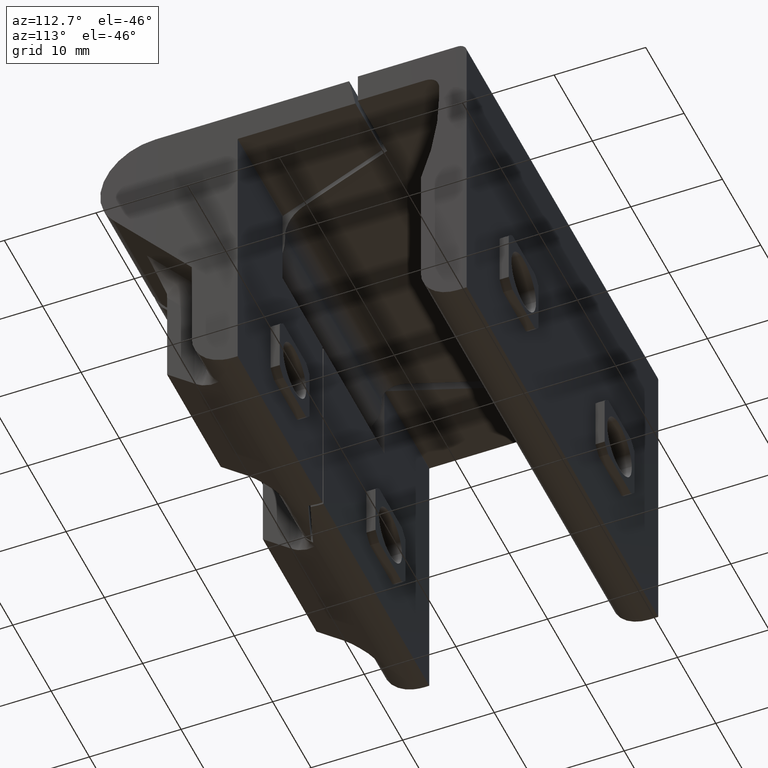
[diagram: clean part render]
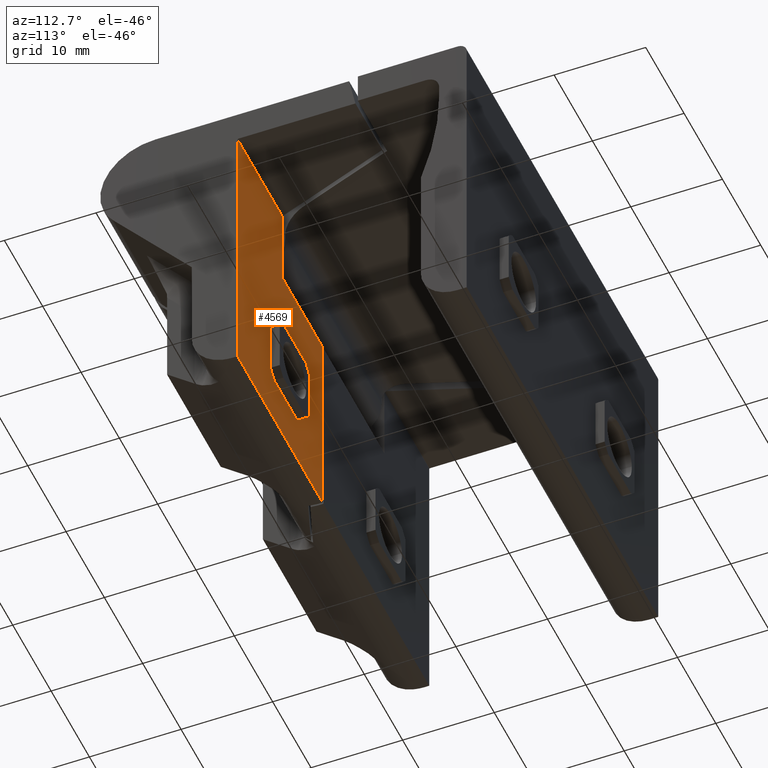
[diagram: same view with one face highlighted and labeled with its STEP entity id]
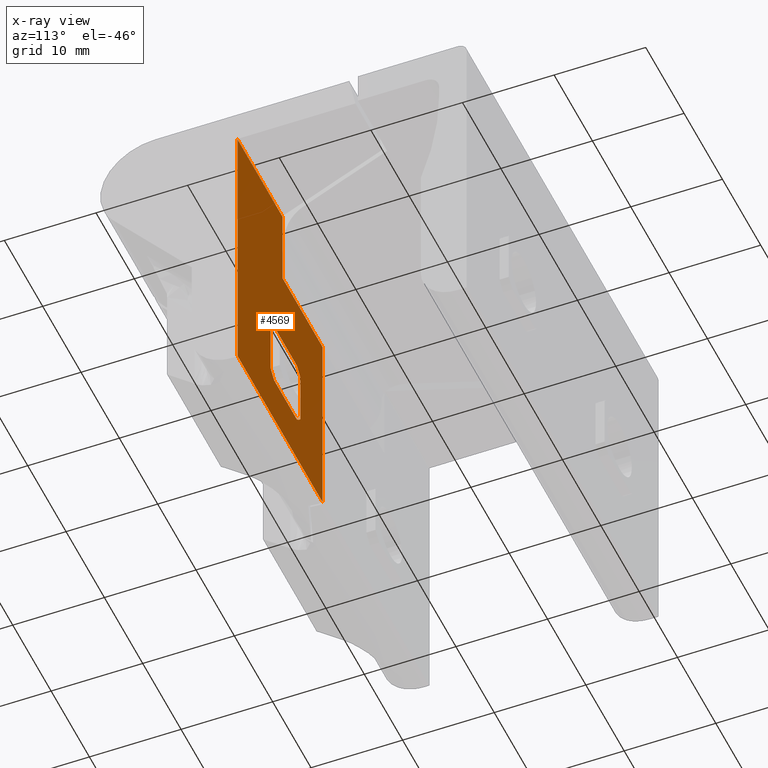
[diagram: x-ray of the same camera — body ghosted, the highlighted face saturated]
A machine part, auxiliary view. The second image highlights one B-rep face of the part: STEP entity #4569.
The next image is the same camera in x-ray: the body ghosted, the highlighted face saturated — about 0% of this face is hidden behind the body in this view.
In plain terms, the highlighted face is a freeform B-spline surface patch.
Its self-contained STEP definition (entity closure, byte-faithful):
#3837=CARTESIAN_POINT('',(2.806379506659595,-25.0,22.499999999963102));
#3838=VERTEX_POINT('',#3837);
#3844=CARTESIAN_POINT('',(2.806379506659595,-25.0,-3.685940E-011));
#3845=VERTEX_POINT('',#3844);
#3846=CARTESIAN_POINT('',(2.806379506659595,-25.0,22.499999999963102));
#3847=CARTESIAN_POINT('',(2.806379506659595,-25.0,-3.685940E-011));
#3848=QUASI_UNIFORM_CURVE('',1,(#3846,#3847),.UNSPECIFIED.,.F.,.U.);
#3849=EDGE_CURVE('',#3838,#3845,#3848,.T.);
#3866=CARTESIAN_POINT('',(13.291910702825540,-25.0,31.400000000037149));
#3867=VERTEX_POINT('',#3866);
#3881=CARTESIAN_POINT('',(13.291910702825620,-25.0,22.499999999963151));
#3882=VERTEX_POINT('',#3881);
#3883=CARTESIAN_POINT('',(13.291910702825620,-25.0,22.499999999963151));
#3884=CARTESIAN_POINT('',(13.291910702825540,-25.0,31.400000000037149));
#3885=QUASI_UNIFORM_CURVE('',1,(#3883,#3884),.UNSPECIFIED.,.F.,.U.);
#3886=EDGE_CURVE('',#3882,#3867,#3885,.T.);
#4375=CARTESIAN_POINT('',(13.291910702825620,-25.0,22.499999999963151));
#4376=CARTESIAN_POINT('',(2.806379506659595,-25.0,22.499999999963102));
#4377=QUASI_UNIFORM_CURVE('',1,(#4375,#4376),.UNSPECIFIED.,.F.,.U.);
#4378=EDGE_CURVE('',#3882,#3838,#4377,.T.);
#4395=CARTESIAN_POINT('',(25.0,-25.0,3.703196E-011));
#4396=VERTEX_POINT('',#4395);
#4402=CARTESIAN_POINT('',(25.0,-25.0,31.400000000037149));
#4403=VERTEX_POINT('',#4402);
#4404=CARTESIAN_POINT('',(25.0,-25.0,3.703196E-011));
#4405=CARTESIAN_POINT('',(25.0,-25.0,31.400000000037149));
#4406=QUASI_UNIFORM_CURVE('',1,(#4404,#4405),.UNSPECIFIED.,.F.,.U.);
#4407=EDGE_CURVE('',#4396,#4403,#4406,.T.);
#4442=CARTESIAN_POINT('',(25.0,-25.0,31.400000000037149));
#4443=CARTESIAN_POINT('',(13.291910702825540,-25.0,31.400000000037149));
#4444=QUASI_UNIFORM_CURVE('',1,(#4442,#4443),.UNSPECIFIED.,.F.,.U.);
#4445=EDGE_CURVE('',#4403,#3867,#4444,.T.);
#4457=CARTESIAN_POINT('',(25.0,-25.0,3.703196E-011));
#4458=CARTESIAN_POINT('',(2.806379506659595,-25.0,-3.685940E-011));
#4459=QUASI_UNIFORM_CURVE('',1,(#4457,#4458),.UNSPECIFIED.,.F.,.U.);
#4460=EDGE_CURVE('',#4396,#3845,#4459,.T.);
#4466=CARTESIAN_POINT('',(1.697808206032786,-25.0,32.968429939181561));
#4467=CARTESIAN_POINT('',(1.697808206032786,-25.0,-1.568430781394893));
#4468=CARTESIAN_POINT('',(26.108571895906099,-25.0,32.968429939181561));
#4469=CARTESIAN_POINT('',(26.108571895906099,-25.0,-1.568430781394893));
#4470=B_SPLINE_SURFACE_WITH_KNOTS('',1,1,((#4466,#4468),(#4467,#4469)),.UNSPECIFIED.,.F.,.F.,.U.,(2,2),(2,2),(0.0,34.536860720576463),(0.0,24.410763689873310),.UNSPECIFIED.);
#4471=ORIENTED_EDGE('',*,*,#4460,.T.);
#4472=ORIENTED_EDGE('',*,*,#3849,.F.);
#4473=ORIENTED_EDGE('',*,*,#4378,.F.);
#4474=ORIENTED_EDGE('',*,*,#3886,.T.);
#4475=ORIENTED_EDGE('',*,*,#4445,.F.);
#4476=ORIENTED_EDGE('',*,*,#4407,.F.);
#4477=EDGE_LOOP('',(#4471,#4472,#4473,#4474,#4475,#4476));
#4478=FACE_OUTER_BOUND('',#4477,.T.);
#4479=CARTESIAN_POINT('',(16.400000000054550,-25.0,6.533520604988921));
#4480=VERTEX_POINT('',#4479);
#4481=CARTESIAN_POINT('',(16.400000000054600,-25.0,12.466479394521940));
#4482=VERTEX_POINT('',#4481);
#4483=CARTESIAN_POINT('',(16.400000000054550,-25.0,6.533520604988921));
#4484=CARTESIAN_POINT('',(16.400000000054600,-25.0,12.466479394521940));
#4485=QUASI_UNIFORM_CURVE('',1,(#4483,#4484),.UNSPECIFIED.,.F.,.U.);
#4486=EDGE_CURVE('',#4480,#4482,#4485,.T.);
#4487=ORIENTED_EDGE('',*,*,#4486,.T.);
#4488=CARTESIAN_POINT('',(15.466479394910850,-25.0,13.399999999700240));
#4489=VERTEX_POINT('',#4488);
#4490=CARTESIAN_POINT('',(16.400000000054600,-25.0,12.466479394521940));
#4491=CARTESIAN_POINT('',(15.996697305826489,-25.000000000000004,12.996697305452505));
#4492=CARTESIAN_POINT('',(15.466479394910850,-25.0,13.399999999700251));
#4500=(BOUNDED_CURVE()B_SPLINE_CURVE(2,(#4490,#4491,#4492),.UNSPECIFIED.,.F.,.U.)CURVE()GEOMETRIC_REPRESENTATION_ITEM()QUASI_UNIFORM_CURVE()RATIONAL_B_SPLINE_CURVE((1.0,0.990884518973042,1.0))REPRESENTATION_ITEM(''));
#4501=EDGE_CURVE('',#4482,#4489,#4500,.T.);
#4502=ORIENTED_EDGE('',*,*,#4501,.T.);
#4503=CARTESIAN_POINT('',(9.533520605089169,-25.0,13.399999999700240));
#4504=VERTEX_POINT('',#4503);
#4505=CARTESIAN_POINT('',(15.466479394910850,-25.0,13.399999999700240));
#4506=CARTESIAN_POINT('',(9.533520605089169,-25.0,13.399999999700240));
#4507=QUASI_UNIFORM_CURVE('',1,(#4505,#4506),.UNSPECIFIED.,.F.,.U.);
#4508=EDGE_CURVE('',#4489,#4504,#4507,.T.);
#4509=ORIENTED_EDGE('',*,*,#4508,.T.);
#4510=CARTESIAN_POINT('',(8.599999999944719,-25.0,12.466479394521039));
#4511=VERTEX_POINT('',#4510);
#4512=CARTESIAN_POINT('',(9.533520605089160,-25.0,13.399999999700260));
#4513=CARTESIAN_POINT('',(9.003302694173057,-24.999999999999996,12.996697305452166));
#4514=CARTESIAN_POINT('',(8.599999999944716,-25.0,12.466479394521039));
#4522=(BOUNDED_CURVE()B_SPLINE_CURVE(2,(#4512,#4513,#4514),.UNSPECIFIED.,.F.,.U.)CURVE()GEOMETRIC_REPRESENTATION_ITEM()QUASI_UNIFORM_CURVE()RATIONAL_B_SPLINE_CURVE((1.0,0.990884518973027,1.0))REPRESENTATION_ITEM(''));
#4523=EDGE_CURVE('',#4504,#4511,#4522,.T.);
#4524=ORIENTED_EDGE('',*,*,#4523,.T.);
#4525=CARTESIAN_POINT('',(8.599999999944709,-25.0,6.533520604989830));
#4526=VERTEX_POINT('',#4525);
#4527=CARTESIAN_POINT('',(8.599999999944719,-25.0,12.466479394521039));
#4528=CARTESIAN_POINT('',(8.599999999944709,-25.0,6.533520604989830));
#4529=QUASI_UNIFORM_CURVE('',1,(#4527,#4528),.UNSPECIFIED.,.F.,.U.);
#4530=EDGE_CURVE('',#4511,#4526,#4529,.T.);
#4531=ORIENTED_EDGE('',*,*,#4530,.T.);
#4532=CARTESIAN_POINT('',(9.533520605089690,-25.0,5.599999999810260));
#4533=VERTEX_POINT('',#4532);
#4534=CARTESIAN_POINT('',(8.599999999944735,-25.0,6.533520604989851));
#4535=CARTESIAN_POINT('',(9.003302694173275,-25.0,6.003302694058476));
#4536=CARTESIAN_POINT('',(9.533520605089690,-25.0,5.599999999810262));
#4544=(BOUNDED_CURVE()B_SPLINE_CURVE(2,(#4534,#4535,#4536),.UNSPECIFIED.,.F.,.U.)CURVE()GEOMETRIC_REPRESENTATION_ITEM()QUASI_UNIFORM_CURVE()RATIONAL_B_SPLINE_CURVE((1.0,0.990884518973018,1.0))REPRESENTATION_ITEM(''));
#4545=EDGE_CURVE('',#4526,#4533,#4544,.T.);
#4546=ORIENTED_EDGE('',*,*,#4545,.T.);
#4547=CARTESIAN_POINT('',(15.466479394910300,-25.0,5.599999999810280));
#4548=VERTEX_POINT('',#4547);
#4549=CARTESIAN_POINT('',(9.533520605089690,-25.0,5.599999999810260));
#4550=CARTESIAN_POINT('',(15.466479394910300,-25.0,5.599999999810280));
#4551=QUASI_UNIFORM_CURVE('',1,(#4549,#4550),.UNSPECIFIED.,.F.,.U.);
#4552=EDGE_CURVE('',#4533,#4548,#4551,.T.);
#4553=ORIENTED_EDGE('',*,*,#4552,.T.);
#4554=CARTESIAN_POINT('',(15.466479394910310,-25.0,5.599999999810262));
#4555=CARTESIAN_POINT('',(15.996697305826251,-24.999999999999996,6.003302694058114));
#4556=CARTESIAN_POINT('',(16.400000000054550,-25.0,6.533520604988918));
#4564=(BOUNDED_CURVE()B_SPLINE_CURVE(2,(#4554,#4555,#4556),.UNSPECIFIED.,.F.,.U.)CURVE()GEOMETRIC_REPRESENTATION_ITEM()QUASI_UNIFORM_CURVE()RATIONAL_B_SPLINE_CURVE((1.0,0.990884518973034,1.0))REPRESENTATION_ITEM(''));
#4565=EDGE_CURVE('',#4548,#4480,#4564,.T.);
#4566=ORIENTED_EDGE('',*,*,#4565,.T.);
#4567=EDGE_LOOP('',(#4487,#4502,#4509,#4524,#4531,#4546,#4553,#4566));
#4568=FACE_BOUND('',#4567,.T.);
#4569=ADVANCED_FACE('',(#4478,#4568),#4470,.F.);